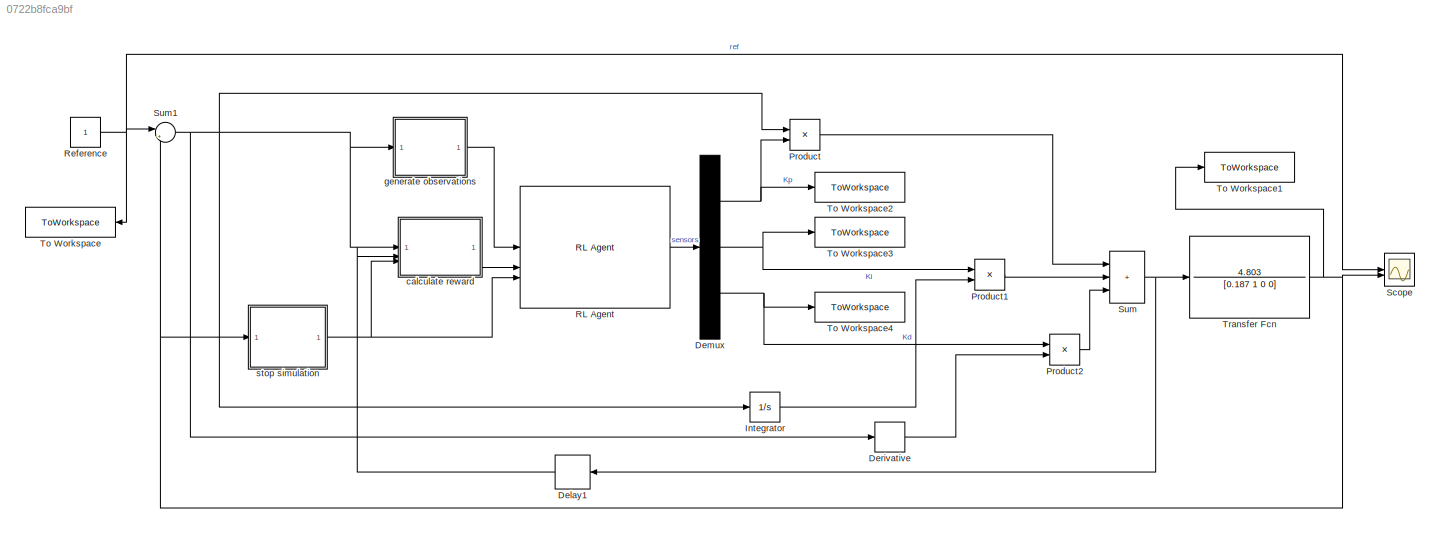
MODEL slx_0722b8fca9bf
KIND model
CONFIG AbsTol = 1e-3
CONFIG EnableMultiTasking = off
CONFIG FixedStep = auto
CONFIG MaxStep = auto
CONFIG MinStep = auto
CONFIG RelTol = 1e-2
CONFIG SampleTimeConstraint = Unconstrained
CONFIG SolverName = ode15s
CONFIG StartTime = 0.0
CONFIG StopTime = 10.0
BLOCK [Delay] Delay1
  DelayLength = 1
  InputPortMap = u0
BLOCK [Demux] Demux
  Outputs = 3
BLOCK [Derivative] Derivative
  CoefficientInTFapproximation = 0
BLOCK [Integrator] Integrator
BLOCK [Product] Product
BLOCK [Product] Product1
BLOCK [Product] Product2
BLOCK [Reference] RL Agent  REF=rllib/RL Agent
  SourceBlock = rllib/RL Agent
  SourceType = RL Agent
BLOCK [Constant] Reference
BLOCK [Scope] Scope
  Floating = off
  NumInputPorts = 2
  ScopeSpecificationString = Simulink.scopes.TimeScopeBlockCfg('CurrentConfiguration', extmgr.ConfigurationSet(extmgr.Configuration('Core','General UI',true),extmgr.Configuration('Core','Source UI',true),extmgr.Configuration('Sources','WiredSimulink',true),extmgr.Configuration('Visuals','Time Domain',true,'SerializedDisplays',{struct('MinYLimReal','-0.16233','MaxYLimReal','1.46096','YLabelReal','','MinYLimMag','0.00000','MaxY...<+1436ch>
BLOCK [Sum] Sum
  IconShape = rectangular
  Inputs = +++
BLOCK [Sum] Sum1
  Inputs = |+-
  SaturateOnIntegerOverflow = on
BLOCK [ToWorkspace] To Workspace
  FixptAsFi = on
  MaxDataPoints = inf
  SampleTime = -1
  VariableName = Desired
BLOCK [ToWorkspace] To Workspace1
  FixptAsFi = on
  MaxDataPoints = inf
  SampleTime = -1
  VariableName = Actual
BLOCK [ToWorkspace] To Workspace2
  FixptAsFi = on
  MaxDataPoints = inf
  SampleTime = -1
  SaveFormat = Structure With Time
  VariableName = Kp
BLOCK [ToWorkspace] To Workspace3
  FixptAsFi = on
  MaxDataPoints = inf
  SampleTime = -1
  SaveFormat = Structure With Time
  VariableName = Ki
BLOCK [ToWorkspace] To Workspace4
  FixptAsFi = on
  MaxDataPoints = inf
  SampleTime = -1
  SaveFormat = Structure With Time
  VariableName = Kd
BLOCK [TransferFcn] Transfer Fcn
  Denominator = [0.187 1 0 0]
  Numerator = 4.803
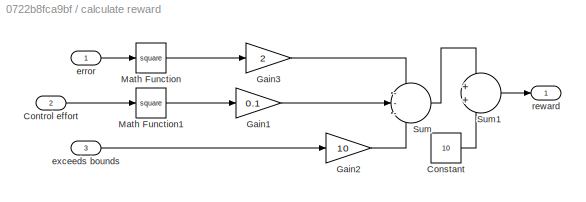
BLOCK [SubSystem] calculate reward
BLOCK [Constant] calculate reward/Constant
  Value = 10
BLOCK [Inport] calculate reward/Control effort
  Port = 2
BLOCK [Gain] calculate reward/Gain1
  Gain = 0.1
BLOCK [Gain] calculate reward/Gain2
  Gain = 10
BLOCK [Gain] calculate reward/Gain3
  Gain = 2
BLOCK [Math] calculate reward/Math Function
  Operator = square
BLOCK [Math] calculate reward/Math Function1
  Operator = square
BLOCK [Sum] calculate reward/Sum
  Inputs = ---
  OutDataTypeStr = double
BLOCK [Sum] calculate reward/Sum1
  OutDataTypeStr = double
BLOCK [Inport] calculate reward/error
BLOCK [Inport] calculate reward/exceeds bounds
  Port = 3
BLOCK [Outport] calculate reward/reward
  VectorParamsAs1DForOutWhenUnconnected = off
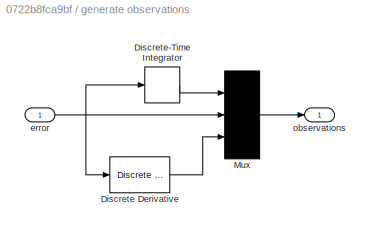
BLOCK [SubSystem] generate observations
BLOCK [Reference] generate observations/Discrete Derivative  REF=simulink/Discrete/Discrete Derivative
  SourceBlock = simulink/Discrete/Discrete Derivative
  SourceType = Discrete Derivative
BLOCK [DiscreteIntegrator] generate observations/Discrete-Time Integrator
  ICPrevOutput = DiscIntNeverNeededParam
  ICPrevScaledInput = DiscIntNeverNeededParam
  InitialConditionSetting = Auto
  SampleTime = Ts
BLOCK [Mux] generate observations/Mux
  DisplayOption = bar
  Inputs = 3
BLOCK [Inport] generate observations/error
BLOCK [Outport] generate observations/observations
  VectorParamsAs1DForOutWhenUnconnected = off
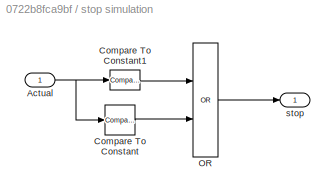
BLOCK [SubSystem] stop simulation
BLOCK [Inport] stop simulation/Actual
BLOCK [Reference] stop simulation/Compare To Constant  REF=simulink/Logic and Bit
Operations/Compare
To Constant
  SourceBlock = simulink/Logic and Bit\nOperations/Compare\nTo Constant
  SourceType = Compare To Constant
BLOCK [Reference] stop simulation/Compare To Constant1  REF=simulink/Logic and Bit
Operations/Compare
To Constant
  SourceBlock = simulink/Logic and Bit\nOperations/Compare\nTo Constant
  SourceType = Compare To Constant
BLOCK [Logic] stop simulation/OR
  AllPortsSameDT = off
  IconShape = distinctive
  Operator = OR
  OutDataTypeStr = boolean
BLOCK [Outport] stop simulation/stop
  VectorParamsAs1DForOutWhenUnconnected = off
LINE Delay1:1 -> calculate reward:2
NET Demux:1 -> Product:2, To Workspace2:1
NET Demux:2 -> Product1:1, To Workspace3:1
NET Demux:3 -> Product2:1, To Workspace4:1
LINE Derivative:1 -> Product2:2
LINE Integrator:1 -> Product1:2
LINE Product1:1 -> Sum:2
LINE Product2:1 -> Sum:3
LINE Product:1 -> Sum:1
LINE RL Agent:1 -> Demux:1
NET Reference:1 -> Scope:1, Sum1:1, To Workspace:1
NET Sum1:1 -> Derivative:1, Integrator:1, Product:1, calculate reward:1, generate observations:1
NET Sum:1 -> Delay1:1, Transfer Fcn:1
NET Transfer Fcn:1 -> Scope:2, Sum1:2, To Workspace1:1, stop simulation:1
LINE calculate reward/Constant:1 -> calculate reward/Sum1:2
LINE calculate reward/Control effort:1 -> calculate reward/Math Function1:1
LINE calculate reward/Gain1:1 -> calculate reward/Sum:2
LINE calculate reward/Gain2:1 -> calculate reward/Sum:3
LINE calculate reward/Gain3:1 -> calculate reward/Sum:1
LINE calculate reward/Math Function1:1 -> calculate reward/Gain1:1
LINE calculate reward/Math Function:1 -> calculate reward/Gain3:1
LINE calculate reward/Sum1:1 -> calculate reward/reward:1
LINE calculate reward/Sum:1 -> calculate reward/Sum1:1
LINE calculate reward/error:1 -> calculate reward/Math Function:1
LINE calculate reward/exceeds bounds:1 -> calculate reward/Gain2:1
LINE calculate reward:1 -> RL Agent:2
LINE generate observations/Discrete Derivative:1 -> generate observations/Mux:3
LINE generate observations/Discrete-Time Integrator:1 -> generate observations/Mux:1
LINE generate observations/Mux:1 -> generate observations/observations:1
NET generate observations/error:1 -> generate observations/Discrete Derivative:1, generate observations/Discrete-Time Integrator:1, generate observations/Mux:2
LINE generate observations:1 -> RL Agent:1
NET stop simulation/Actual:1 -> stop simulation/Compare To Constant1:1, stop simulation/Compare To Constant:1
LINE stop simulation/Compare To Constant1:1 -> stop simulation/OR:1
LINE stop simulation/Compare To Constant:1 -> stop simulation/OR:2
LINE stop simulation/OR:1 -> stop simulation/stop:1
NET stop simulation:1 -> RL Agent:3, calculate reward:3
note: NET lines group one-source signal fan-out (src -> all destinations, sorted); 1:1 wires keep LINE
